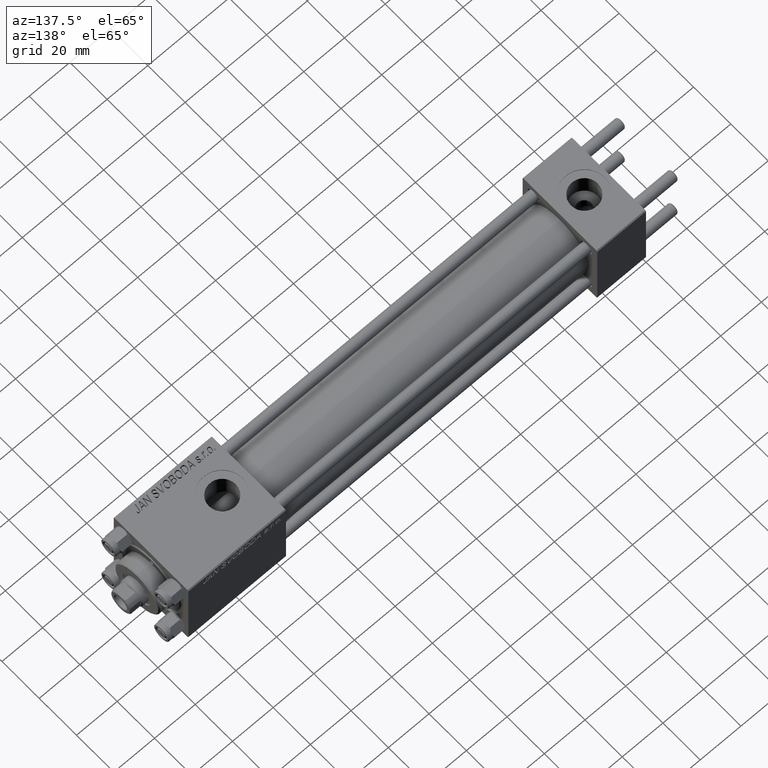
[diagram: clean part render]
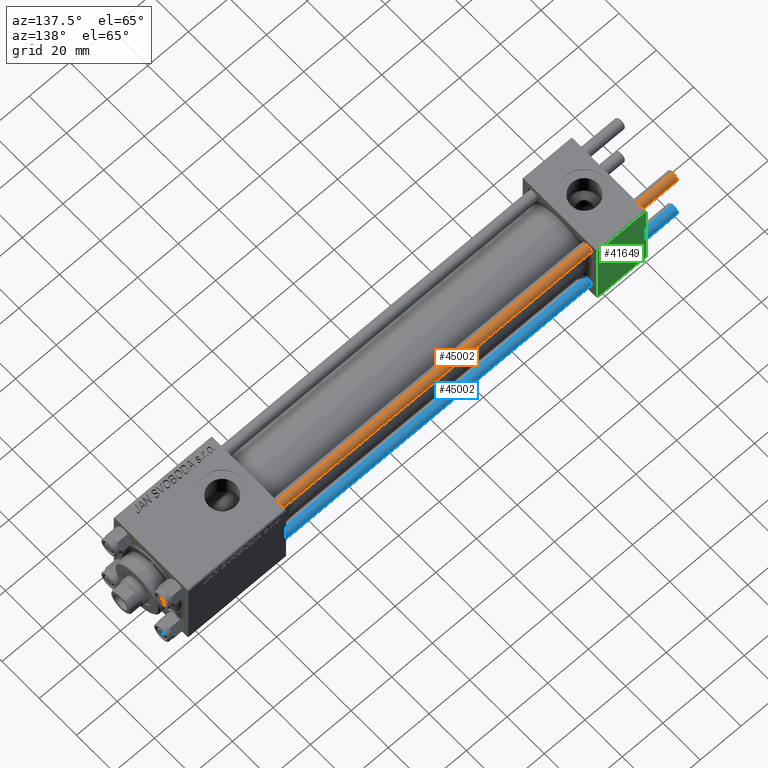
[diagram: same view with three faces highlighted in distinct colors, each labeled with its STEP entity id]
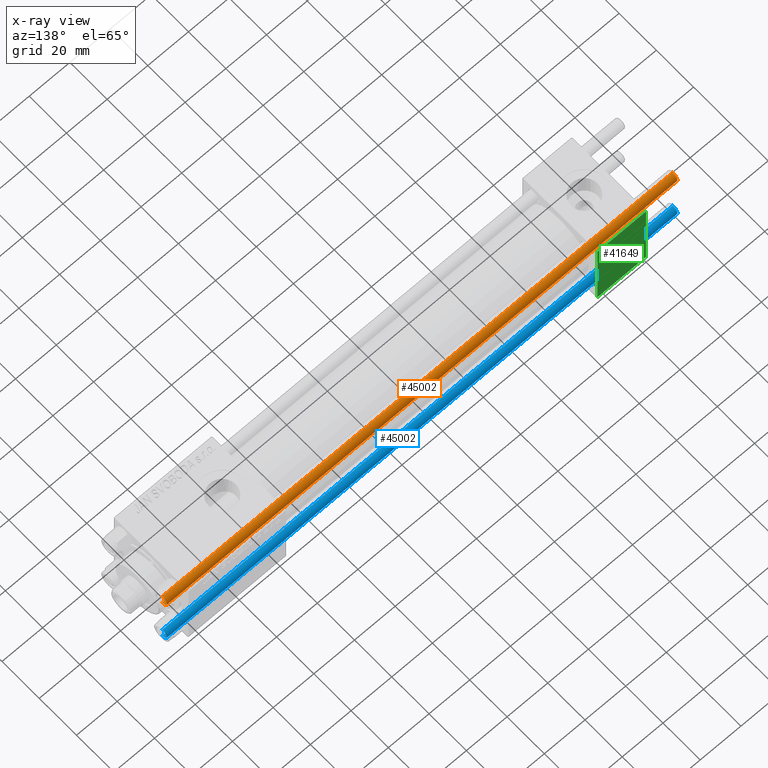
[diagram: x-ray of the same camera — body ghosted, the three highlighted faces saturated]
A machine part, auxiliary view with three faces highlighted in distinct colors.
The next image is the same camera in x-ray (body ghosted, the three faces saturated) — at least one of them is partly hidden behind the body in this view.
Their STEP definitions:

[orange] entity #45002 — the highlighted cylindrical surface (edge-blend (fillet) strip) has radius 2.5 mm, axis along (-1, -0, -0).
#579 = EDGE_CURVE ( 'NONE', #8456, #40892, #44209, .T. ) ;
#613 = VERTEX_POINT ( 'NONE', #1534 ) ;
#747 = ORIENTED_EDGE ( 'NONE', *, *, #24050, .T. ) ;
#866 = CARTESIAN_POINT ( 'NONE',  ( -2.500000000000000000, 0.000000000000000000, 0.5000000000000004441 ) ) ;
#1534 = CARTESIAN_POINT ( 'NONE',  ( 2.500000000000000000, 3.061616997868383141E-16, 251.5000000000000000 ) ) ;
#2275 = DIRECTION ( 'NONE',  ( -0.000000000000000000, -0.000000000000000000, -1.000000000000000000 ) ) ;
#3713 = EDGE_CURVE ( 'NONE', #48394, #40892, #43572, .T. ) ;
#4668 = DIRECTION ( 'NONE',  ( -0.000000000000000000, -0.000000000000000000, 1.000000000000000000 ) ) ;
#4993 = ORIENTED_EDGE ( 'NONE', *, *, #579, .F. ) ;
#5838 = LINE ( 'NONE', #9155, #16689 ) ;
#6833 = ORIENTED_EDGE ( 'NONE', *, *, #3713, .T. ) ;
#7454 = CYLINDRICAL_SURFACE ( 'NONE', #39018, 2.500000000000000000 ) ;
#8297 = CARTESIAN_POINT ( 'NONE',  ( 0.000000000000000000, 0.000000000000000000, 251.5000000000000000 ) ) ;
#8456 = VERTEX_POINT ( 'NONE', #17719 ) ;
#9155 = CARTESIAN_POINT ( 'NONE',  ( 2.500000000000000000, 3.061616997868383141E-16, 252.0000000000000000 ) ) ;
#9653 = DIRECTION ( 'NONE',  ( -0.000000000000000000, -0.000000000000000000, -1.000000000000000000 ) ) ;
#12861 = DIRECTION ( 'NONE',  ( 1.000000000000000000, 0.000000000000000000, 0.000000000000000000 ) ) ;
#16689 = VECTOR ( 'NONE', #9653, 1000.000000000000000 ) ;
#16993 = AXIS2_PLACEMENT_3D ( 'NONE', #31698, #4668, #39003 ) ;
#17719 = CARTESIAN_POINT ( 'NONE',  ( -2.500000000000000000, 0.000000000000000000, 251.5000000000000000 ) ) ;
#19889 = EDGE_LOOP ( 'NONE', ( #39234, #747, #6833, #4993 ) ) ;
#21540 = CARTESIAN_POINT ( 'NONE',  ( 2.500000000000000000, 3.061616997868383141E-16, 0.5000000000000004441 ) ) ;
#24050 = EDGE_CURVE ( 'NONE', #613, #48394, #5838, .T. ) ;
#31698 = CARTESIAN_POINT ( 'NONE',  ( 0.000000000000000000, 0.000000000000000000, 0.5000000000000004441 ) ) ;
#32625 = CIRCLE ( 'NONE', #42185, 2.500000000000000000 ) ;
#37048 = VECTOR ( 'NONE', #2275, 1000.000000000000000 ) ;
#38008 = DIRECTION ( 'NONE',  ( -0.000000000000000000, -0.000000000000000000, -1.000000000000000000 ) ) ;
#38501 = FACE_OUTER_BOUND ( 'NONE', #19889, .T. ) ;
#38830 = DIRECTION ( 'NONE',  ( 0.000000000000000000, 0.000000000000000000, -1.000000000000000000 ) ) ;
#39003 = DIRECTION ( 'NONE',  ( 1.000000000000000000, 0.000000000000000000, 0.000000000000000000 ) ) ;
#39018 = AXIS2_PLACEMENT_3D ( 'NONE', #49347, #38008, #45819 ) ;
#39234 = ORIENTED_EDGE ( 'NONE', *, *, #42568, .T. ) ;
#40892 = VERTEX_POINT ( 'NONE', #866 ) ;
#40919 = CARTESIAN_POINT ( 'NONE',  ( -2.500000000000000000, 0.000000000000000000, 252.0000000000000000 ) ) ;
#42185 = AXIS2_PLACEMENT_3D ( 'NONE', #8297, #38830, #12861 ) ;
#42568 = EDGE_CURVE ( 'NONE', #8456, #613, #32625, .T. ) ;
#43572 = CIRCLE ( 'NONE', #16993, 2.500000000000000000 ) ;
#44209 = LINE ( 'NONE', #40919, #37048 ) ;
#45002 = ADVANCED_FACE ( 'NONE', ( #38501 ), #7454, .T. ) ;
#45819 = DIRECTION ( 'NONE',  ( -1.000000000000000000, 0.000000000000000000, 0.000000000000000000 ) ) ;
#48394 = VERTEX_POINT ( 'NONE', #21540 ) ;
#49347 = CARTESIAN_POINT ( 'NONE',  ( 0.000000000000000000, 0.000000000000000000, 252.0000000000000000 ) ) ;

[blue] entity #45002 — the highlighted cylindrical surface (edge-blend (fillet) strip) has radius 2.5 mm, axis along (1, 0, -0).
#579 = EDGE_CURVE ( 'NONE', #8456, #40892, #44209, .T. ) ;
#613 = VERTEX_POINT ( 'NONE', #1534 ) ;
#747 = ORIENTED_EDGE ( 'NONE', *, *, #24050, .T. ) ;
#866 = CARTESIAN_POINT ( 'NONE',  ( -2.500000000000000000, 0.000000000000000000, 0.5000000000000004441 ) ) ;
#1534 = CARTESIAN_POINT ( 'NONE',  ( 2.500000000000000000, 3.061616997868383141E-16, 251.5000000000000000 ) ) ;
#2275 = DIRECTION ( 'NONE',  ( -0.000000000000000000, -0.000000000000000000, -1.000000000000000000 ) ) ;
#3713 = EDGE_CURVE ( 'NONE', #48394, #40892, #43572, .T. ) ;
#4668 = DIRECTION ( 'NONE',  ( -0.000000000000000000, -0.000000000000000000, 1.000000000000000000 ) ) ;
#4993 = ORIENTED_EDGE ( 'NONE', *, *, #579, .F. ) ;
#5838 = LINE ( 'NONE', #9155, #16689 ) ;
#6833 = ORIENTED_EDGE ( 'NONE', *, *, #3713, .T. ) ;
#7454 = CYLINDRICAL_SURFACE ( 'NONE', #39018, 2.500000000000000000 ) ;
#8297 = CARTESIAN_POINT ( 'NONE',  ( 0.000000000000000000, 0.000000000000000000, 251.5000000000000000 ) ) ;
#8456 = VERTEX_POINT ( 'NONE', #17719 ) ;
#9155 = CARTESIAN_POINT ( 'NONE',  ( 2.500000000000000000, 3.061616997868383141E-16, 252.0000000000000000 ) ) ;
#9653 = DIRECTION ( 'NONE',  ( -0.000000000000000000, -0.000000000000000000, -1.000000000000000000 ) ) ;
#12861 = DIRECTION ( 'NONE',  ( 1.000000000000000000, 0.000000000000000000, 0.000000000000000000 ) ) ;
#16689 = VECTOR ( 'NONE', #9653, 1000.000000000000000 ) ;
#16993 = AXIS2_PLACEMENT_3D ( 'NONE', #31698, #4668, #39003 ) ;
#17719 = CARTESIAN_POINT ( 'NONE',  ( -2.500000000000000000, 0.000000000000000000, 251.5000000000000000 ) ) ;
#19889 = EDGE_LOOP ( 'NONE', ( #39234, #747, #6833, #4993 ) ) ;
#21540 = CARTESIAN_POINT ( 'NONE',  ( 2.500000000000000000, 3.061616997868383141E-16, 0.5000000000000004441 ) ) ;
#24050 = EDGE_CURVE ( 'NONE', #613, #48394, #5838, .T. ) ;
#31698 = CARTESIAN_POINT ( 'NONE',  ( 0.000000000000000000, 0.000000000000000000, 0.5000000000000004441 ) ) ;
#32625 = CIRCLE ( 'NONE', #42185, 2.500000000000000000 ) ;
#37048 = VECTOR ( 'NONE', #2275, 1000.000000000000000 ) ;
#38008 = DIRECTION ( 'NONE',  ( -0.000000000000000000, -0.000000000000000000, -1.000000000000000000 ) ) ;
#38501 = FACE_OUTER_BOUND ( 'NONE', #19889, .T. ) ;
#38830 = DIRECTION ( 'NONE',  ( 0.000000000000000000, 0.000000000000000000, -1.000000000000000000 ) ) ;
#39003 = DIRECTION ( 'NONE',  ( 1.000000000000000000, 0.000000000000000000, 0.000000000000000000 ) ) ;
#39018 = AXIS2_PLACEMENT_3D ( 'NONE', #49347, #38008, #45819 ) ;
#39234 = ORIENTED_EDGE ( 'NONE', *, *, #42568, .T. ) ;
#40892 = VERTEX_POINT ( 'NONE', #866 ) ;
#40919 = CARTESIAN_POINT ( 'NONE',  ( -2.500000000000000000, 0.000000000000000000, 252.0000000000000000 ) ) ;
#42185 = AXIS2_PLACEMENT_3D ( 'NONE', #8297, #38830, #12861 ) ;
#42568 = EDGE_CURVE ( 'NONE', #8456, #613, #32625, .T. ) ;
#43572 = CIRCLE ( 'NONE', #16993, 2.500000000000000000 ) ;
#44209 = LINE ( 'NONE', #40919, #37048 ) ;
#45002 = ADVANCED_FACE ( 'NONE', ( #38501 ), #7454, .T. ) ;
#45819 = DIRECTION ( 'NONE',  ( -1.000000000000000000, 0.000000000000000000, 0.000000000000000000 ) ) ;
#48394 = VERTEX_POINT ( 'NONE', #21540 ) ;
#49347 = CARTESIAN_POINT ( 'NONE',  ( 0.000000000000000000, 0.000000000000000000, 252.0000000000000000 ) ) ;

[green] entity #41649 — the highlighted planar face has unit normal (0, 1, 0).
#3536 = ORIENTED_EDGE ( 'NONE', *, *, #14637, .T. ) ;
#3736 = FACE_OUTER_BOUND ( 'NONE', #47718, .T. ) ;
#4905 = DIRECTION ( 'NONE',  ( 0.000000000000000000, 0.000000000000000000, -1.000000000000000000 ) ) ;
#5792 = CARTESIAN_POINT ( 'NONE',  ( 0.000000000000000000, 20.00000000000000000, 19.49999999999999289 ) ) ;
#7059 = VERTEX_POINT ( 'NONE', #21118 ) ;
#9168 = CARTESIAN_POINT ( 'NONE',  ( 24.00000000000000000, 20.00000000000000000, 19.49999999999999289 ) ) ;
#9368 = CARTESIAN_POINT ( 'NONE',  ( 24.00000000000000000, 20.00000000000000000, 20.00000000000000000 ) ) ;
#12902 = LINE ( 'NONE', #9368, #25280 ) ;
#14089 = DIRECTION ( 'NONE',  ( 1.000000000000000000, 0.000000000000000000, 0.000000000000000000 ) ) ;
#14637 = EDGE_CURVE ( 'NONE', #20560, #32331, #40842, .T. ) ;
#15262 = EDGE_CURVE ( 'NONE', #7059, #24348, #30532, .T. ) ;
#17336 = VECTOR ( 'NONE', #14089, 1000.000000000000000 ) ;
#18607 = ORIENTED_EDGE ( 'NONE', *, *, #15262, .T. ) ;
#18919 = PLANE ( 'NONE',  #22863 ) ;
#20560 = VERTEX_POINT ( 'NONE', #5792 ) ;
#20584 = LINE ( 'NONE', #47577, #41798 ) ;
#20960 = CARTESIAN_POINT ( 'NONE',  ( 0.000000000000000000, 20.00000000000000000, -19.50000000000002132 ) ) ;
#21118 = CARTESIAN_POINT ( 'NONE',  ( 24.00000000000000000, 20.00000000000000000, -19.50000000000002132 ) ) ;
#22863 = AXIS2_PLACEMENT_3D ( 'NONE', #34060, #34301, #30278 ) ;
#23412 = ORIENTED_EDGE ( 'NONE', *, *, #31010, .F. ) ;
#23735 = DIRECTION ( 'NONE',  ( 0.000000000000000000, 0.000000000000000000, -1.000000000000000000 ) ) ;
#24348 = VERTEX_POINT ( 'NONE', #20960 ) ;
#25280 = VECTOR ( 'NONE', #23735, 1000.000000000000000 ) ;
#28656 = VECTOR ( 'NONE', #31028, 1000.000000000000000 ) ;
#28923 = ORIENTED_EDGE ( 'NONE', *, *, #38111, .T. ) ;
#30278 = DIRECTION ( 'NONE',  ( 0.000000000000000000, -0.000000000000000000, 1.000000000000000000 ) ) ;
#30532 = LINE ( 'NONE', #34559, #28656 ) ;
#31010 = EDGE_CURVE ( 'NONE', #20560, #24348, #20584, .T. ) ;
#31028 = DIRECTION ( 'NONE',  ( -1.000000000000000000, 0.000000000000000000, 0.000000000000000000 ) ) ;
#32331 = VERTEX_POINT ( 'NONE', #9168 ) ;
#34060 = CARTESIAN_POINT ( 'NONE',  ( 24.00000000000000000, 20.00000000000000000, 20.00000000000000000 ) ) ;
#34301 = DIRECTION ( 'NONE',  ( -0.000000000000000000, 1.000000000000000000, 0.000000000000000000 ) ) ;
#34559 = CARTESIAN_POINT ( 'NONE',  ( 24.00000000000000000, 20.00000000000000000, -19.50000000000002132 ) ) ;
#38111 = EDGE_CURVE ( 'NONE', #32331, #7059, #12902, .T. ) ;
#40347 = CARTESIAN_POINT ( 'NONE',  ( 24.00000000000000000, 20.00000000000000000, 19.49999999999999289 ) ) ;
#40842 = LINE ( 'NONE', #40347, #17336 ) ;
#41649 = ADVANCED_FACE ( 'NONE', ( #3736 ), #18919, .T. ) ;
#41798 = VECTOR ( 'NONE', #4905, 1000.000000000000000 ) ;
#47577 = CARTESIAN_POINT ( 'NONE',  ( 0.000000000000000000, 20.00000000000000000, 20.00000000000000000 ) ) ;
#47718 = EDGE_LOOP ( 'NONE', ( #28923, #18607, #23412, #3536 ) ) ;